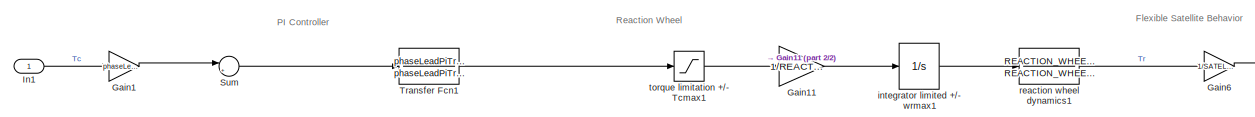
[diagram: root canvas - part 1/2, top center region]
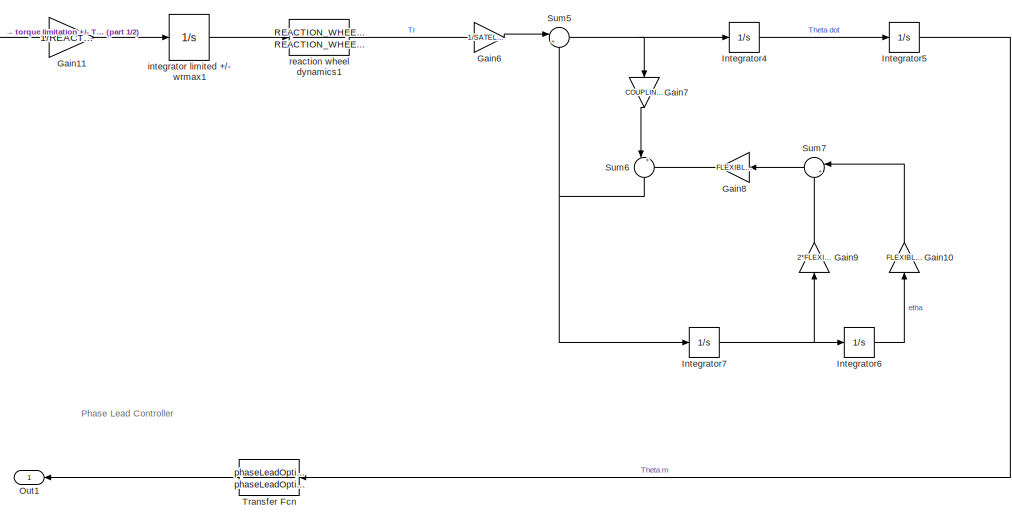
[diagram: root canvas - part 2/2, right side, full height]
MODEL slx_334c65ace0b4
KIND model
CONFIG AbsTol = auto
CONFIG EnableMultiTasking = off
CONFIG FixedStep = auto
CONFIG MaxStep = auto
CONFIG MinStep = auto
CONFIG RelTol = 1e-3
CONFIG SampleTimeConstraint = Unconstrained
CONFIG SolverName = VariableStepAuto
CONFIG StartTime = 0.0
CONFIG StopTime = 200
BLOCK [Gain] Gain1
  Gain = phaseLeadFeedForwardGain
BLOCK [Gain] Gain10
  Gain = FLEXIBLE_MODE_FREQUENCY
  NameLocation = right
BLOCK [Gain] Gain11
  Gain = 1/REACTION_WHEEL_INERTIA
BLOCK [Gain] Gain6
  Gain = 1/SATELLITE_INERTIA
BLOCK [Gain] Gain7
  Gain = COUPLING_COEFFICIENT
  NameLocation = left
BLOCK [Gain] Gain8
  Gain = FLEXIBLE_MODE_FREQUENCY
  NameLocation = top
BLOCK [Gain] Gain9
  Gain = 2*FLEXIBLE_MODE_DAMPING_RATIO
  NameLocation = right
BLOCK [Inport] In1
BLOCK [Integrator] Integrator4
  Ports = [1, 1]
BLOCK [Integrator] Integrator5
  Ports = [1, 1]
BLOCK [Integrator] Integrator6
  InitialCondition = INITIAL_CONDITION_ON_STATE
  Ports = [1, 1]
BLOCK [Integrator] Integrator7
  Ports = [1, 1]
BLOCK [Outport] Out1
  NameLocation = top
BLOCK [Sum] Sum
  Inputs = |+-
  Ports = [2, 1]
BLOCK [Sum] Sum5
  Inputs = |++
  Ports = [2, 1]
BLOCK [Sum] Sum6
  Inputs = |+-
  NameLocation = left
  Ports = [2, 1]
BLOCK [Sum] Sum7
  Inputs = |++
  NameLocation = top
  Ports = [2, 1]
BLOCK [TransferFcn] Transfer Fcn
  Denominator = phaseLeadOptimizedControllerTransferFunctionDenominator
  NameLocation = top
  Numerator = phaseLeadOptimizedControllerTransferFunctionNumerator
BLOCK [TransferFcn] Transfer Fcn1
  Denominator = phaseLeadPiTransferFunctionDenominator
  Numerator = phaseLeadPiTransferFunctionNumerator
BLOCK [Integrator] integrator limited +//- wrmax1
  LimitOutput = on
  LowerSaturationLimit = -REACTION_WHEEL_VELOCITY_SATURATION
  Ports = [1, 1]
  UpperSaturationLimit = REACTION_WHEEL_VELOCITY_SATURATION
BLOCK [TransferFcn] reaction wheel dynamics1
  Denominator = REACTION_WHEEL_DYNAMICS_DENOMINATOR
  Numerator = REACTION_WHEEL_DYNAMICS_NUMERATOR
BLOCK [Saturate] torque limitation +//- Tcmax1
  LowerLimit = -COMMANDED_TORQUE_SATURATION
  UpperLimit = COMMANDED_TORQUE_SATURATION
ANNOTATION (root): Flexible Satellite Behavior
ANNOTATION (root): PI Controller
ANNOTATION (root): Phase Lead Controller
ANNOTATION (root): Reaction Wheel
LINE Gain10:1 -> Sum7:1
LINE Gain11:1 -> integrator limited +//- wrmax1:1
LINE Gain1:1 -> Sum:1
LINE Gain6:1 -> Sum5:1
LINE Gain7:1 -> Sum6:1
LINE Gain8:1 -> Sum6:2
LINE Gain9:1 -> Sum7:2
LINE In1:1 -> Gain1:1
LINE Integrator4:1 -> Integrator5:1
LINE Integrator5:1 -> Transfer Fcn:1
LINE Integrator6:1 -> Gain10:1
NET Integrator7:1 -> Gain9:1, Integrator6:1
NET Sum5:1 -> Gain7:1, Integrator4:1
NET Sum6:1 -> Integrator7:1, Sum5:2
LINE Sum7:1 -> Gain8:1
LINE Sum:1 -> Transfer Fcn1:1
LINE Transfer Fcn1:1 -> torque limitation +//- Tcmax1:1
LINE Transfer Fcn:1 -> Out1:1
LINE integrator limited +//- wrmax1:1 -> reaction wheel dynamics1:1
LINE reaction wheel dynamics1:1 -> Gain6:1
LINE torque limitation +//- Tcmax1:1 -> Gain11:1
note: NET lines group one-source signal fan-out (src -> all destinations, sorted); 1:1 wires keep LINE
